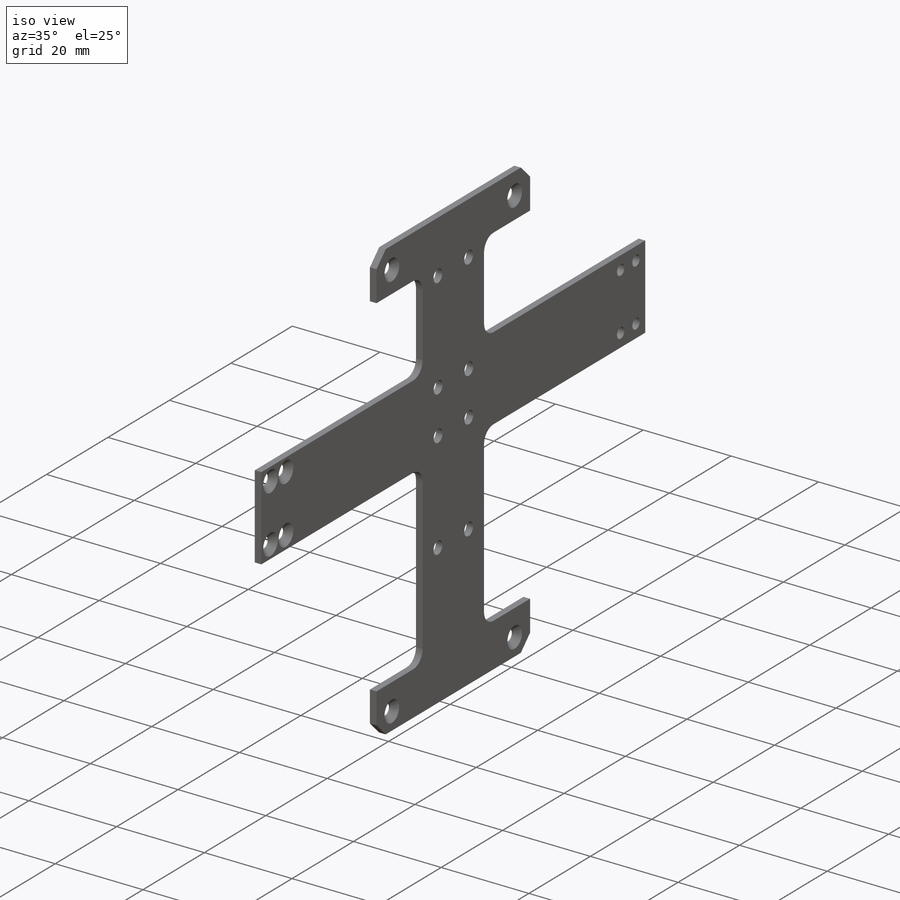
[diagram: iso view]
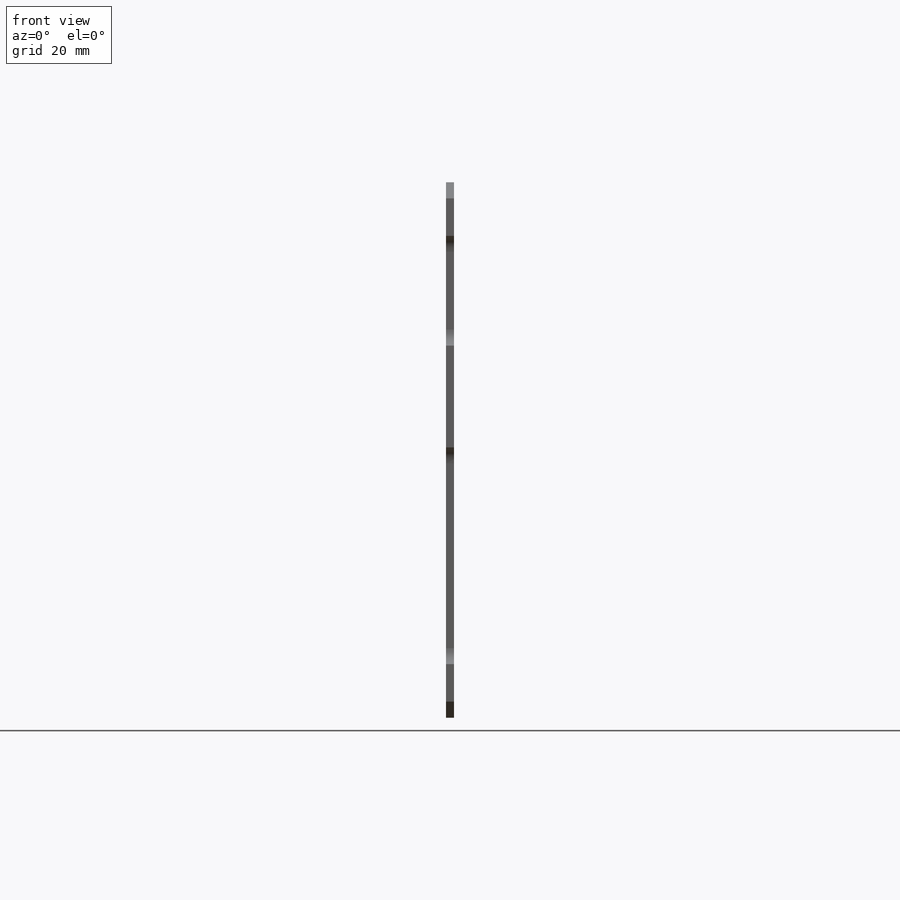
[diagram: front view]
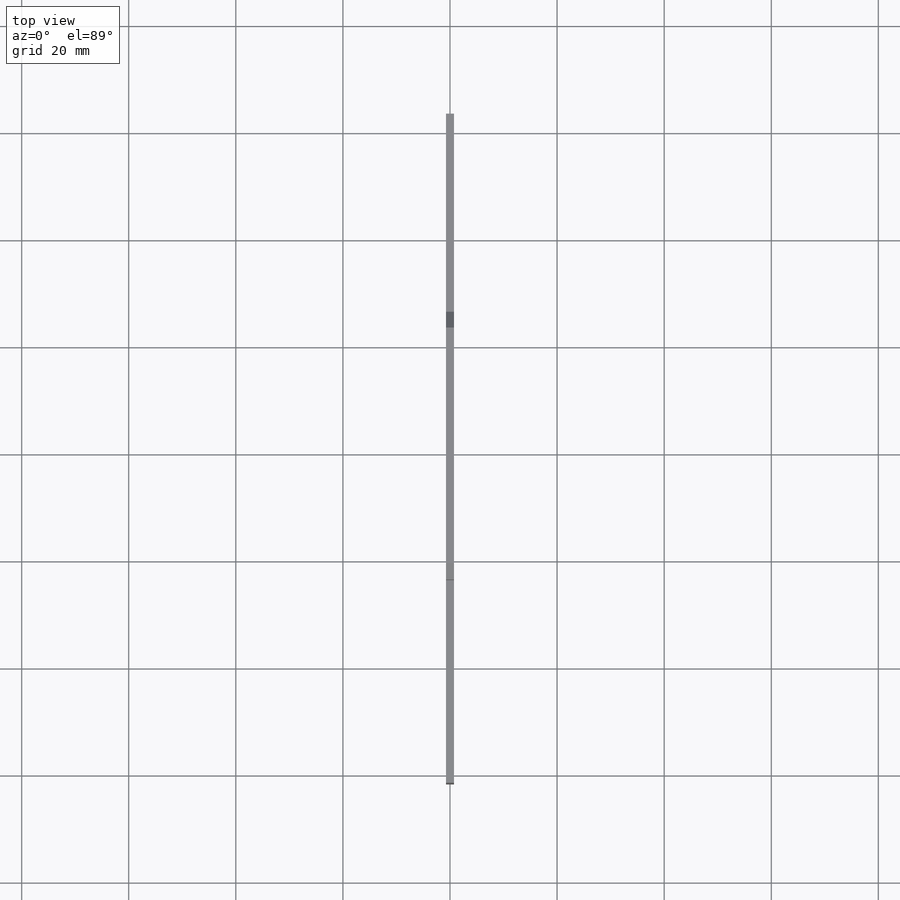
[diagram: top view]
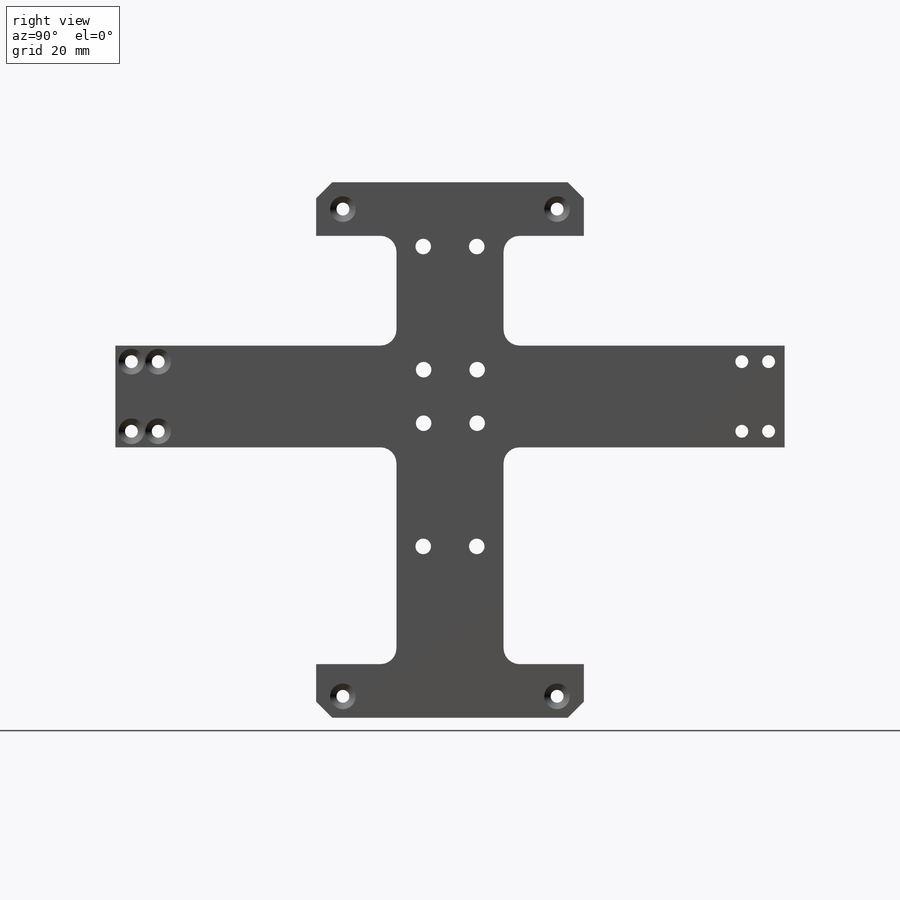
[diagram: right view]
SOLIDWORKS PART (.sldprt)
format: sldprt  version: not decoded by parser v0  size: 698,368 bytes
history: native  units: mm
features: sketch x18, extrude x5, cut_extrude x4, hole x4, fillet x3, mirror x2, chamfer x2, material x1 (+12 scaffold rows collapsed)
feature tree (51):
  scaffold x12  (default folders/planes/origin — collapsed)
  material  "Hexcel AS4C (3000 Filaments)"
  sketch  "Sketch1"  dims[D1=1.5mm D2=25.0mm]
  extrude  "Boss-Extrude1"  Depth=73mm
  fillet  "Fillet1"  Radius=1mm
  sketch  "Sketch10"  dims[D1=20.0mm D2=25.0mm]
  extrude  "Boss-Extrude2"  [1 undecoded]
  sketch  "Sketch16"  dims[c1.D1=3.5mm c1.D2=40.5mm c2.D1=19.0mm]
  cut_extrude  "Cut-Extrude2"  Depth=10mm
  mirror  "Mirror3"
  sketch  "Sketch21"  dims[D1=97.0mm]
  extrude  "Boss-Extrude4"  [1 undecoded]
  fillet  "Fillet4"  Radius=1.5mm
  sketch  "Sketch17"
  extrude  "Boss-Extrude3"  [1 undecoded]
  hole  "M2 Clearance Hole4"  Diameter=2.4mm Depth=1.5mm
  sketch  "Sketch19"  dims[D1=2.5mm D2=40.0mm D3=91.0mm]
  sketch  "Sketch18"  dims[hole-wizard template sketch: 47 standard entries collapsed; hole parameters kept: c15.Hole Depth=1.5mm c15.D3=~14.816244mm c15.Drill Angle=180.0deg]
  sketch  "Sketch22"  dims[D1=125.0mm]
  cut_extrude  "Cut-Extrude4"  Depth=10mm
  hole  "M2 Clearance Hole5"  Diameter=2.4mm Depth=11.5mm
  sketch  "Sketch24"  dims[D1=13.0mm D2=5.0mm D3=54.5mm]
  sketch  "Sketch23"  dims[hole-wizard template sketch: 50 standard entries collapsed; hole parameters above]
  mirror  "Mirror4"
  sketch  "Sketch25"  dims[D1=2.5mm D2=0.5mm]
  extrude  "Boss-Extrude5"  [1 undecoded]
  hole  "M2.5 Clearance Hole1"  Diameter=2.9mm Depth=11.5mm
  sketch  "Sketch27"  dims[c1.D1=10.0mm c1.D2=5.0mm c1.D3=85.0mm c2.D2=12.0mm c2.D3=32.0mm]
  sketch  "Sketch26"  dims[hole-wizard template sketch: 47 standard entries collapsed; hole parameters kept: c15.Hole Depth=11.5mm c15.D3=~14.816244mm c15.Drill Angle=180.0deg]
  sketch  "Sketch29"  dims[D1=50.0mm]
  cut_extrude  "Cut-Extrude5"  Depth=10mm
  sketch  "Sketch31"  dims[c1.D3=2.9mm c1.D1=10.0mm c1.D2=5.0mm c2.D3=20.0mm c2.D2=10.0mm]
  cut_extrude  "Cut-Extrude7"  Depth=10mm
  fillet  "Fillet5"  Radius=3mm
  chamfer  "Chamfer1"  Distance=1.2mm Angle=45deg
  chamfer  "Chamfer2"  Distance=3mm Angle=45deg
  sketch  "Sketch32"
  hole  "M2.5 Clearance Hole2"  Diameter=2.9mm Depth=10mm
  sketch  "Sketch34"
  sketch  "Sketch33"  dims[hole-wizard template sketch: 50 standard entries collapsed; hole parameters above]
decode coverage: 29 of 38 modeling features carry decoded parameters
note: ~ marks probable driven/reference dimensions
note: 4 parameter values undecoded
summary: no parameter record found for 4 features; Diameter pulled from absorbed wizard sketch
note: suppression state not decoded; provenance and decode notes live in map.json
